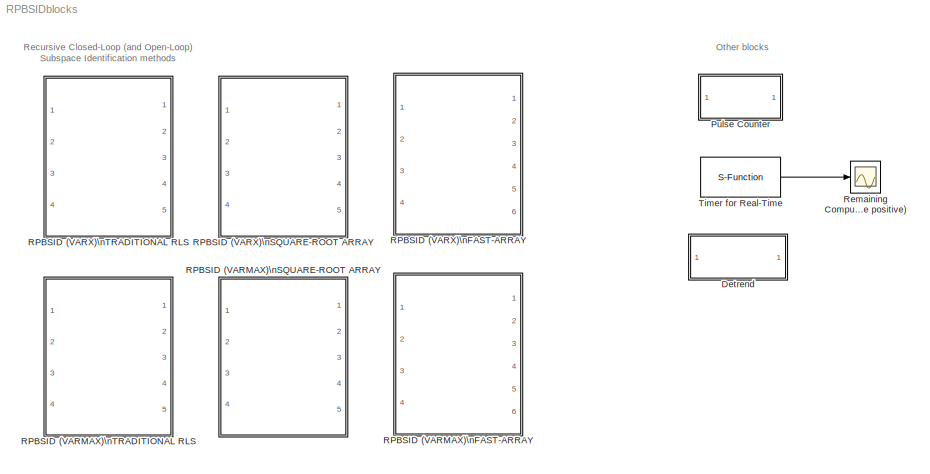
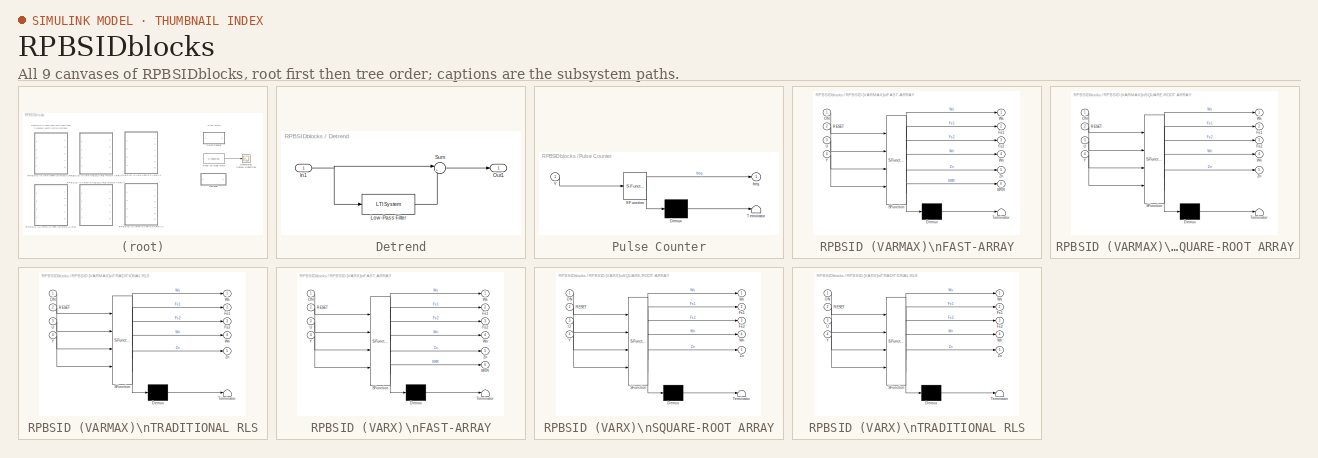
[diagram: thumbnail index - all 9 canvases of the model, root first then tree order]
MODEL RPBSIDblocks
KIND model
BLOCK [SubSystem] Detrend
  FunctionWithSeparateData = off
  MaskHideContents = off
  MinAlgLoopOccurrences = off
  Opaque = off
  Ports = [1, 1]
  PropExecContextOutsideSubsystem = off
  RTWSystemCode = Auto
  RequestExecContextInheritance = off
  SID = 32
BLOCK [Inport] Detrend/In1
  IconDisplay = Port number
  OutDataType = fixdt(1, 16)
  OutScaling = 2^0
  SID = 33
BLOCK [Reference] Detrend/Low-Pass Filter  REF=cstblocks/LTI System
  FunctionWithSeparateData = off
  IC = []
  Ports = [1, 1]
  RTWMemSecDataConstants = Inherit from model
  RTWMemSecDataInternal = Inherit from model
  RTWMemSecDataParameters = Inherit from model
  RTWMemSecFuncExecute = Inherit from model
  RTWMemSecFuncInitTerm = Inherit from model
  SID = 35
  ShowPortLabels = FromPortIcon
  SourceBlock = cstblocks/LTI System
  SourceType = LTI Block
  SystemSampleTime = -1
  sys = LP
BLOCK [Outport] Detrend/Out1
  IconDisplay = Port number
  OutDataType = fixdt(1, 16)
  OutScaling = 2^0
  SID = 34
BLOCK [Sum] Detrend/Sum
  IconShape = round
  InputSameDT = off
  Inputs = |+-
  OutDataType = fixdt(1, 16)
  OutDataTypeMode = Inherit via internal rule
  OutDataTypeStr = Inherit: Inherit via internal rule
  OutScaling = 2^0
  Ports = [2, 1]
  SID = 36
  SaturateOnIntegerOverflow = off
BLOCK [SubSystem] Pulse Counter
  FunctionWithSeparateData = off
  MaskDescription = Embedded MATLAB block
  MaskDisplay = disp('pulse');
  MaskHideContents = off
  MaskIconFrame = on
  MaskIconOpaque = off
  MaskIconRotate = none
  MaskIconUnits = autoscale
  MaskPortRotate = default
  MaskSelfModifiable = on
  MaskType = Stateflow
  MinAlgLoopOccurrences = off
  Opaque = off
  PermitHierarchicalResolution = ExplicitOnly
  Ports = [1, 1]
  PropExecContextOutsideSubsystem = off
  RTWSystemCode = Auto
  RequestExecContextInheritance = off
  SID = 3
BLOCK [Demux] Pulse Counter/ Demux 
  Outputs = 1
  Ports = [1, 1]
  SID = 7
BLOCK [S-Function] Pulse Counter/ SFunction 
  EnableBusSupport = off
  FunctionName = sf_sfun
  PortCounts = [1 2]
  Ports = [1, 2]
  SID = 6
  Tag = Stateflow S-Function RPBSIDblocks 15
BLOCK [Terminator] Pulse Counter/ Terminator 
  SID = 9
BLOCK [Inport] Pulse Counter/Y
  IconDisplay = Port number
  OutDataType = sfix(16)
  OutScaling = 2^0
  SID = 1
BLOCK [Outport] Pulse Counter/freq
  IconDisplay = Port number
  OutDataType = sfix(16)
  OutScaling = 2^0
  SID = 5
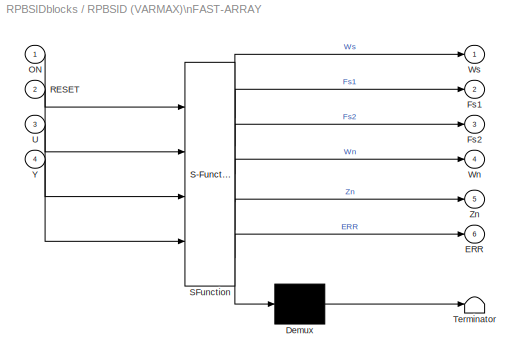
BLOCK [SubSystem] RPBSID (VARMAX)\nFAST-ARRAY
  FunctionWithSeparateData = off
  MaskDescription = Embedded MATLAB block
  MaskDisplay = disp('rpbsid');
  MaskHideContents = off
  MaskIconFrame = on
  MaskIconOpaque = off
  MaskIconRotate = none
  MaskIconUnits = autoscale
  MaskPortRotate = default
  MaskSelfModifiable = on
  MaskType = Stateflow
  MinAlgLoopOccurrences = off
  Opaque = off
  PermitHierarchicalResolution = ExplicitOnly
  Ports = [4, 6]
  PropExecContextOutsideSubsystem = off
  RTWSystemCode = Auto
  RequestExecContextInheritance = off
  SID = 26
BLOCK [Demux] RPBSID (VARMAX)\nFAST-ARRAY/ Demux 
  Outputs = 1
  Ports = [1, 1]
  SID = 19
BLOCK [S-Function] RPBSID (VARMAX)\nFAST-ARRAY/ SFunction 
  EnableBusSupport = on
  FunctionName = sf_sfun
  Parameters = Du,Dy,W
  PortCounts = [4 7]
  Ports = [4, 7]
  SID = 18
  Tag = Stateflow S-Function RPBSIDblocks 6
BLOCK [Terminator] RPBSID (VARMAX)\nFAST-ARRAY/ Terminator 
  SID = 21
BLOCK [Outport] RPBSID (VARMAX)\nFAST-ARRAY/ERR
  IconDisplay = Port number
  Port = 6
  SID = 25
BLOCK [Outport] RPBSID (VARMAX)\nFAST-ARRAY/Fs1
  IconDisplay = Port number
  Port = 2
  SID = 10
BLOCK [Outport] RPBSID (VARMAX)\nFAST-ARRAY/Fs2
  IconDisplay = Port number
  Port = 3
  SID = 11
BLOCK [Inport] RPBSID (VARMAX)\nFAST-ARRAY/ON
  IconDisplay = Port number
  SID = 24
BLOCK [Inport] RPBSID (VARMAX)\nFAST-ARRAY/RESET
  IconDisplay = Port number
  Port = 2
  SID = 26
BLOCK [Inport] RPBSID (VARMAX)\nFAST-ARRAY/U
  IconDisplay = Port number
  OutDataType = sfix(16)
  OutScaling = 2^0
  Port = 3
  SID = 1
BLOCK [Outport] RPBSID (VARMAX)\nFAST-ARRAY/Wn
  IconDisplay = Port number
  OutDataType = sfix(16)
  OutScaling = 2^0
  Port = 4
  SID = 12
BLOCK [Outport] RPBSID (VARMAX)\nFAST-ARRAY/Ws
  IconDisplay = Port number
  SID = 9
BLOCK [Inport] RPBSID (VARMAX)\nFAST-ARRAY/Y
  IconDisplay = Port number
  OutDataType = sfix(16)
  OutScaling = 2^0
  Port = 4
  SID = 2
BLOCK [Outport] RPBSID (VARMAX)\nFAST-ARRAY/Zn
  IconDisplay = Port number
  OutDataType = sfix(16)
  OutScaling = 2^0
  Port = 5
  SID = 13
BLOCK [SubSystem] RPBSID (VARMAX)\nSQUARE-ROOT ARRAY
  FunctionWithSeparateData = off
  MaskDescription = Embedded MATLAB block
  MaskDisplay = disp('rpbsid');
  MaskHideContents = off
  MaskIconFrame = on
  MaskIconOpaque = off
  MaskIconRotate = none
  MaskIconUnits = autoscale
  MaskPortRotate = default
  MaskSelfModifiable = on
  MaskType = Stateflow
  MinAlgLoopOccurrences = off
  Opaque = off
  PermitHierarchicalResolution = ExplicitOnly
  Ports = [4, 5]
  PropExecContextOutsideSubsystem = off
  RTWSystemCode = Auto
  RequestExecContextInheritance = off
  SID = 28
BLOCK [Demux] RPBSID (VARMAX)\nSQUARE-ROOT ARRAY/ Demux 
  Outputs = 1
  Ports = [1, 1]
  SID = 19
BLOCK [S-Function] RPBSID (VARMAX)\nSQUARE-ROOT ARRAY/ SFunction 
  EnableBusSupport = on
  FunctionName = sf_sfun
  Parameters = Du,Dy,W
  PortCounts = [4 6]
  Ports = [4, 6]
  SID = 18
  Tag = Stateflow S-Function RPBSIDblocks 1
BLOCK [Terminator] RPBSID (VARMAX)\nSQUARE-ROOT ARRAY/ Terminator 
  SID = 21
BLOCK [Outport] RPBSID (VARMAX)\nSQUARE-ROOT ARRAY/Fs1
  IconDisplay = Port number
  Port = 2
  SID = 10
BLOCK [Outport] RPBSID (VARMAX)\nSQUARE-ROOT ARRAY/Fs2
  IconDisplay = Port number
  Port = 3
  SID = 11
BLOCK [Inport] RPBSID (VARMAX)\nSQUARE-ROOT ARRAY/ON
  IconDisplay = Port number
  SID = 24
BLOCK [Inport] RPBSID (VARMAX)\nSQUARE-ROOT ARRAY/RESET
  IconDisplay = Port number
  Port = 2
  SID = 25
BLOCK [Inport] RPBSID (VARMAX)\nSQUARE-ROOT ARRAY/U
  IconDisplay = Port number
  OutDataType = sfix(16)
  OutScaling = 2^0
  Port = 3
  SID = 1
BLOCK [Outport] RPBSID (VARMAX)\nSQUARE-ROOT ARRAY/Wn
  IconDisplay = Port number
  OutDataType = sfix(16)
  OutScaling = 2^0
  Port = 4
  SID = 12
BLOCK [Outport] RPBSID (VARMAX)\nSQUARE-ROOT ARRAY/Ws
  IconDisplay = Port number
  SID = 9
BLOCK [Inport] RPBSID (VARMAX)\nSQUARE-ROOT ARRAY/Y
  IconDisplay = Port number
  OutDataType = sfix(16)
  OutScaling = 2^0
  Port = 4
  SID = 2
BLOCK [Outport] RPBSID (VARMAX)\nSQUARE-ROOT ARRAY/Zn
  IconDisplay = Port number
  OutDataType = sfix(16)
  OutScaling = 2^0
  Port = 5
  SID = 13
BLOCK [SubSystem] RPBSID (VARMAX)\nTRADITIONAL RLS
  FunctionWithSeparateData = off
  MaskDescription = Embedded MATLAB block
  MaskDisplay = disp('rpbsid');
  MaskHideContents = off
  MaskIconFrame = on
  MaskIconOpaque = off
  MaskIconRotate = none
  MaskIconUnits = autoscale
  MaskPortRotate = default
  MaskSelfModifiable = on
  MaskType = Stateflow
  MinAlgLoopOccurrences = off
  Opaque = off
  PermitHierarchicalResolution = ExplicitOnly
  Ports = [4, 5]
  PropExecContextOutsideSubsystem = off
  RTWSystemCode = Auto
  RequestExecContextInheritance = off
  SID = 27
BLOCK [Demux] RPBSID (VARMAX)\nTRADITIONAL RLS/ Demux 
  Outputs = 1
  Ports = [1, 1]
  SID = 19
BLOCK [S-Function] RPBSID (VARMAX)\nTRADITIONAL RLS/ SFunction 
  EnableBusSupport = on
  FunctionName = sf_sfun
  Parameters = Du,Dy,W
  PortCounts = [4 6]
  Ports = [4, 6]
  SID = 18
  Tag = Stateflow S-Function RPBSIDblocks 4
BLOCK [Terminator] RPBSID (VARMAX)\nTRADITIONAL RLS/ Terminator 
  SID = 21
BLOCK [Outport] RPBSID (VARMAX)\nTRADITIONAL RLS/Fs1
  IconDisplay = Port number
  Port = 2
  SID = 10
BLOCK [Outport] RPBSID (VARMAX)\nTRADITIONAL RLS/Fs2
  IconDisplay = Port number
  Port = 3
  SID = 11
BLOCK [Inport] RPBSID (VARMAX)\nTRADITIONAL RLS/ON
  IconDisplay = Port number
  SID = 24
BLOCK [Inport] RPBSID (VARMAX)\nTRADITIONAL RLS/RESET
  IconDisplay = Port number
  Port = 2
  SID = 25
BLOCK [Inport] RPBSID (VARMAX)\nTRADITIONAL RLS/U
  IconDisplay = Port number
  OutDataType = sfix(16)
  OutScaling = 2^0
  Port = 3
  SID = 1
BLOCK [Outport] RPBSID (VARMAX)\nTRADITIONAL RLS/Wn
  IconDisplay = Port number
  OutDataType = sfix(16)
  OutScaling = 2^0
  Port = 4
  SID = 12
BLOCK [Outport] RPBSID (VARMAX)\nTRADITIONAL RLS/Ws
  IconDisplay = Port number
  SID = 9
BLOCK [Inport] RPBSID (VARMAX)\nTRADITIONAL RLS/Y
  IconDisplay = Port number
  OutDataType = sfix(16)
  OutScaling = 2^0
  Port = 4
  SID = 2
BLOCK [Outport] RPBSID (VARMAX)\nTRADITIONAL RLS/Zn
  IconDisplay = Port number
  OutDataType = sfix(16)
  OutScaling = 2^0
  Port = 5
  SID = 13
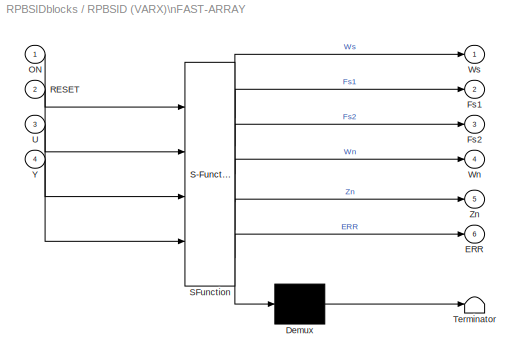
BLOCK [SubSystem] RPBSID (VARX)\nFAST-ARRAY
  FunctionWithSeparateData = off
  MaskDescription = Embedded MATLAB block
  MaskDisplay = disp('rpbsid');
  MaskHideContents = off
  MaskIconFrame = on
  MaskIconOpaque = off
  MaskIconRotate = none
  MaskIconUnits = autoscale
  MaskPortRotate = default
  MaskSelfModifiable = on
  MaskType = Stateflow
  MinAlgLoopOccurrences = off
  Opaque = off
  PermitHierarchicalResolution = ExplicitOnly
  Ports = [4, 6]
  PropExecContextOutsideSubsystem = off
  RTWSystemCode = Auto
  RequestExecContextInheritance = off
  SID = 29
BLOCK [Demux] RPBSID (VARX)\nFAST-ARRAY/ Demux 
  Outputs = 1
  Ports = [1, 1]
  SID = 19
BLOCK [S-Function] RPBSID (VARX)\nFAST-ARRAY/ SFunction 
  EnableBusSupport = on
  FunctionName = sf_sfun
  Parameters = Du,Dy,W
  PortCounts = [4 7]
  Ports = [4, 7]
  SID = 18
  Tag = Stateflow S-Function RPBSIDblocks 5
BLOCK [Terminator] RPBSID (VARX)\nFAST-ARRAY/ Terminator 
  SID = 21
BLOCK [Outport] RPBSID (VARX)\nFAST-ARRAY/ERR
  IconDisplay = Port number
  Port = 6
  SID = 25
BLOCK [Outport] RPBSID (VARX)\nFAST-ARRAY/Fs1
  IconDisplay = Port number
  Port = 2
  SID = 10
BLOCK [Outport] RPBSID (VARX)\nFAST-ARRAY/Fs2
  IconDisplay = Port number
  Port = 3
  SID = 11
BLOCK [Inport] RPBSID (VARX)\nFAST-ARRAY/ON
  IconDisplay = Port number
  SID = 24
BLOCK [Inport] RPBSID (VARX)\nFAST-ARRAY/RESET
  IconDisplay = Port number
  Port = 2
  SID = 27
BLOCK [Inport] RPBSID (VARX)\nFAST-ARRAY/U
  IconDisplay = Port number
  OutDataType = sfix(16)
  OutScaling = 2^0
  Port = 3
  SID = 1
BLOCK [Outport] RPBSID (VARX)\nFAST-ARRAY/Wn
  IconDisplay = Port number
  OutDataType = sfix(16)
  OutScaling = 2^0
  Port = 4
  SID = 12
BLOCK [Outport] RPBSID (VARX)\nFAST-ARRAY/Ws
  IconDisplay = Port number
  SID = 9
BLOCK [Inport] RPBSID (VARX)\nFAST-ARRAY/Y
  IconDisplay = Port number
  OutDataType = sfix(16)
  OutScaling = 2^0
  Port = 4
  SID = 2
BLOCK [Outport] RPBSID (VARX)\nFAST-ARRAY/Zn
  IconDisplay = Port number
  OutDataType = sfix(16)
  OutScaling = 2^0
  Port = 5
  SID = 13
BLOCK [SubSystem] RPBSID (VARX)\nSQUARE-ROOT ARRAY
  FunctionWithSeparateData = off
  MaskDescription = Embedded MATLAB block
  MaskDisplay = disp('rpbsid');
  MaskHideContents = off
  MaskIconFrame = on
  MaskIconOpaque = off
  MaskIconRotate = none
  MaskIconUnits = autoscale
  MaskPortRotate = default
  MaskSelfModifiable = on
  MaskType = Stateflow
  MinAlgLoopOccurrences = off
  Opaque = off
  PermitHierarchicalResolution = ExplicitOnly
  Ports = [4, 5]
  PropExecContextOutsideSubsystem = off
  RTWSystemCode = Auto
  RequestExecContextInheritance = off
  SID = 31
BLOCK [Demux] RPBSID (VARX)\nSQUARE-ROOT ARRAY/ Demux 
  Outputs = 1
  Ports = [1, 1]
  SID = 19
BLOCK [S-Function] RPBSID (VARX)\nSQUARE-ROOT ARRAY/ SFunction 
  EnableBusSupport = on
  FunctionName = sf_sfun
  Parameters = Du,Dy,W
  PortCounts = [4 6]
  Ports = [4, 6]
  SID = 18
  Tag = Stateflow S-Function RPBSIDblocks 2
BLOCK [Terminator] RPBSID (VARX)\nSQUARE-ROOT ARRAY/ Terminator 
  SID = 21
BLOCK [Outport] RPBSID (VARX)\nSQUARE-ROOT ARRAY/Fs1
  IconDisplay = Port number
  Port = 2
  SID = 10
BLOCK [Outport] RPBSID (VARX)\nSQUARE-ROOT ARRAY/Fs2
  IconDisplay = Port number
  Port = 3
  SID = 11
BLOCK [Inport] RPBSID (VARX)\nSQUARE-ROOT ARRAY/ON
  IconDisplay = Port number
  SID = 24
BLOCK [Inport] RPBSID (VARX)\nSQUARE-ROOT ARRAY/RESET
  IconDisplay = Port number
  Port = 2
  SID = 26
BLOCK [Inport] RPBSID (VARX)\nSQUARE-ROOT ARRAY/U
  IconDisplay = Port number
  OutDataType = sfix(16)
  OutScaling = 2^0
  Port = 3
  SID = 1
BLOCK [Outport] RPBSID (VARX)\nSQUARE-ROOT ARRAY/Wn
  IconDisplay = Port number
  OutDataType = sfix(16)
  OutScaling = 2^0
  Port = 4
  SID = 12
BLOCK [Outport] RPBSID (VARX)\nSQUARE-ROOT ARRAY/Ws
  IconDisplay = Port number
  SID = 9
BLOCK [Inport] RPBSID (VARX)\nSQUARE-ROOT ARRAY/Y
  IconDisplay = Port number
  OutDataType = sfix(16)
  OutScaling = 2^0
  Port = 4
  SID = 2
BLOCK [Outport] RPBSID (VARX)\nSQUARE-ROOT ARRAY/Zn
  IconDisplay = Port number
  OutDataType = sfix(16)
  OutScaling = 2^0
  Port = 5
  SID = 13
BLOCK [SubSystem] RPBSID (VARX)\nTRADITIONAL RLS
  FunctionWithSeparateData = off
  MaskDescription = Embedded MATLAB block
  MaskDisplay = disp('rpbsid');
  MaskHideContents = off
  MaskIconFrame = on
  MaskIconOpaque = off
  MaskIconRotate = none
  MaskIconUnits = autoscale
  MaskPortRotate = default
  MaskSelfModifiable = on
  MaskType = Stateflow
  MinAlgLoopOccurrences = off
  Opaque = off
  PermitHierarchicalResolution = ExplicitOnly
  Ports = [4, 5]
  PropExecContextOutsideSubsystem = off
  RTWSystemCode = Auto
  RequestExecContextInheritance = off
  SID = 30
BLOCK [Demux] RPBSID (VARX)\nTRADITIONAL RLS/ Demux 
  Outputs = 1
  Ports = [1, 1]
  SID = 19
BLOCK [S-Function] RPBSID (VARX)\nTRADITIONAL RLS/ SFunction 
  EnableBusSupport = on
  FunctionName = sf_sfun
  Parameters = Du,Dy,W
  PortCounts = [4 6]
  Ports = [4, 6]
  SID = 18
  Tag = Stateflow S-Function RPBSIDblocks 3
BLOCK [Terminator] RPBSID (VARX)\nTRADITIONAL RLS/ Terminator 
  SID = 21
BLOCK [Outport] RPBSID (VARX)\nTRADITIONAL RLS/Fs1
  IconDisplay = Port number
  Port = 2
  SID = 10
BLOCK [Outport] RPBSID (VARX)\nTRADITIONAL RLS/Fs2
  IconDisplay = Port number
  Port = 3
  SID = 11
BLOCK [Inport] RPBSID (VARX)\nTRADITIONAL RLS/ON
  IconDisplay = Port number
  SID = 24
BLOCK [Inport] RPBSID (VARX)\nTRADITIONAL RLS/RESET
  IconDisplay = Port number
  Port = 2
  SID = 26
BLOCK [Inport] RPBSID (VARX)\nTRADITIONAL RLS/U
  IconDisplay = Port number
  OutDataType = sfix(16)
  OutScaling = 2^0
  Port = 3
  SID = 1
BLOCK [Outport] RPBSID (VARX)\nTRADITIONAL RLS/Wn
  IconDisplay = Port number
  OutDataType = sfix(16)
  OutScaling = 2^0
  Port = 4
  SID = 12
BLOCK [Outport] RPBSID (VARX)\nTRADITIONAL RLS/Ws
  IconDisplay = Port number
  SID = 9
BLOCK [Inport] RPBSID (VARX)\nTRADITIONAL RLS/Y
  IconDisplay = Port number
  OutDataType = sfix(16)
  OutScaling = 2^0
  Port = 4
  SID = 2
BLOCK [Outport] RPBSID (VARX)\nTRADITIONAL RLS/Zn
  IconDisplay = Port number
  OutDataType = sfix(16)
  OutScaling = 2^0
  Port = 5
  SID = 13
BLOCK [Scope] Remaining Computation Time\n(must be positive)
  DataFormat = StructureWithTime
  Floating = off
  NumInputPorts = 1
  Ports = [1]
  SID = 8
  SampleTime = 0
  TimeRange = 10
  YMax = 0.01
  YMin = -0.01
  ZoomMode = xonly
BLOCK [S-Function] Timer for Real-Time
  EnableBusSupport = off
  FunctionName = sfun_rttime
  Parameters = 1
  Ports = [0, 1]
  SID = 7
ANNOTATION (root): Other blocks
ANNOTATION (root): Recursive Closed-Loop (and Open-Loop)\nSubspace Identification methods
NET Detrend/In1:1 -> Detrend/Low-Pass Filter:1, Detrend/Sum:1
LINE Detrend/Low-Pass Filter:1 -> Detrend/Sum:2
LINE Detrend/Sum:1 -> Detrend/Out1:1
LINE Pulse Counter/ Demux :1 -> Pulse Counter/ Terminator :1
LINE Pulse Counter/ SFunction :1 -> Pulse Counter/ Demux :1
LINE Pulse Counter/ SFunction :2 -> Pulse Counter/freq:1
LINE Pulse Counter/Y:1 -> Pulse Counter/ SFunction :1
LINE RPBSID (VARMAX)\nFAST-ARRAY/ Demux :1 -> RPBSID (VARMAX)\nFAST-ARRAY/ Terminator :1
LINE RPBSID (VARMAX)\nFAST-ARRAY/ SFunction :1 -> RPBSID (VARMAX)\nFAST-ARRAY/ Demux :1
LINE RPBSID (VARMAX)\nFAST-ARRAY/ SFunction :2 -> RPBSID (VARMAX)\nFAST-ARRAY/Ws:1
LINE RPBSID (VARMAX)\nFAST-ARRAY/ SFunction :3 -> RPBSID (VARMAX)\nFAST-ARRAY/Fs1:1
LINE RPBSID (VARMAX)\nFAST-ARRAY/ SFunction :4 -> RPBSID (VARMAX)\nFAST-ARRAY/Fs2:1
LINE RPBSID (VARMAX)\nFAST-ARRAY/ SFunction :5 -> RPBSID (VARMAX)\nFAST-ARRAY/Wn:1
LINE RPBSID (VARMAX)\nFAST-ARRAY/ SFunction :6 -> RPBSID (VARMAX)\nFAST-ARRAY/Zn:1
LINE RPBSID (VARMAX)\nFAST-ARRAY/ SFunction :7 -> RPBSID (VARMAX)\nFAST-ARRAY/ERR:1
LINE RPBSID (VARMAX)\nFAST-ARRAY/ON:1 -> RPBSID (VARMAX)\nFAST-ARRAY/ SFunction :1
LINE RPBSID (VARMAX)\nFAST-ARRAY/RESET:1 -> RPBSID (VARMAX)\nFAST-ARRAY/ SFunction :2
LINE RPBSID (VARMAX)\nFAST-ARRAY/U:1 -> RPBSID (VARMAX)\nFAST-ARRAY/ SFunction :3
LINE RPBSID (VARMAX)\nFAST-ARRAY/Y:1 -> RPBSID (VARMAX)\nFAST-ARRAY/ SFunction :4
LINE RPBSID (VARMAX)\nSQUARE-ROOT ARRAY/ Demux :1 -> RPBSID (VARMAX)\nSQUARE-ROOT ARRAY/ Terminator :1
LINE RPBSID (VARMAX)\nSQUARE-ROOT ARRAY/ SFunction :1 -> RPBSID (VARMAX)\nSQUARE-ROOT ARRAY/ Demux :1
LINE RPBSID (VARMAX)\nSQUARE-ROOT ARRAY/ SFunction :2 -> RPBSID (VARMAX)\nSQUARE-ROOT ARRAY/Ws:1
LINE RPBSID (VARMAX)\nSQUARE-ROOT ARRAY/ SFunction :3 -> RPBSID (VARMAX)\nSQUARE-ROOT ARRAY/Fs1:1
LINE RPBSID (VARMAX)\nSQUARE-ROOT ARRAY/ SFunction :4 -> RPBSID (VARMAX)\nSQUARE-ROOT ARRAY/Fs2:1
LINE RPBSID (VARMAX)\nSQUARE-ROOT ARRAY/ SFunction :5 -> RPBSID (VARMAX)\nSQUARE-ROOT ARRAY/Wn:1
LINE RPBSID (VARMAX)\nSQUARE-ROOT ARRAY/ SFunction :6 -> RPBSID (VARMAX)\nSQUARE-ROOT ARRAY/Zn:1
LINE RPBSID (VARMAX)\nSQUARE-ROOT ARRAY/ON:1 -> RPBSID (VARMAX)\nSQUARE-ROOT ARRAY/ SFunction :1
LINE RPBSID (VARMAX)\nSQUARE-ROOT ARRAY/RESET:1 -> RPBSID (VARMAX)\nSQUARE-ROOT ARRAY/ SFunction :2
LINE RPBSID (VARMAX)\nSQUARE-ROOT ARRAY/U:1 -> RPBSID (VARMAX)\nSQUARE-ROOT ARRAY/ SFunction :3
LINE RPBSID (VARMAX)\nSQUARE-ROOT ARRAY/Y:1 -> RPBSID (VARMAX)\nSQUARE-ROOT ARRAY/ SFunction :4
LINE RPBSID (VARMAX)\nTRADITIONAL RLS/ Demux :1 -> RPBSID (VARMAX)\nTRADITIONAL RLS/ Terminator :1
LINE RPBSID (VARMAX)\nTRADITIONAL RLS/ SFunction :1 -> RPBSID (VARMAX)\nTRADITIONAL RLS/ Demux :1
LINE RPBSID (VARMAX)\nTRADITIONAL RLS/ SFunction :2 -> RPBSID (VARMAX)\nTRADITIONAL RLS/Ws:1
LINE RPBSID (VARMAX)\nTRADITIONAL RLS/ SFunction :3 -> RPBSID (VARMAX)\nTRADITIONAL RLS/Fs1:1
LINE RPBSID (VARMAX)\nTRADITIONAL RLS/ SFunction :4 -> RPBSID (VARMAX)\nTRADITIONAL RLS/Fs2:1
LINE RPBSID (VARMAX)\nTRADITIONAL RLS/ SFunction :5 -> RPBSID (VARMAX)\nTRADITIONAL RLS/Wn:1
LINE RPBSID (VARMAX)\nTRADITIONAL RLS/ SFunction :6 -> RPBSID (VARMAX)\nTRADITIONAL RLS/Zn:1
LINE RPBSID (VARMAX)\nTRADITIONAL RLS/ON:1 -> RPBSID (VARMAX)\nTRADITIONAL RLS/ SFunction :1
LINE RPBSID (VARMAX)\nTRADITIONAL RLS/RESET:1 -> RPBSID (VARMAX)\nTRADITIONAL RLS/ SFunction :2
LINE RPBSID (VARMAX)\nTRADITIONAL RLS/U:1 -> RPBSID (VARMAX)\nTRADITIONAL RLS/ SFunction :3
LINE RPBSID (VARMAX)\nTRADITIONAL RLS/Y:1 -> RPBSID (VARMAX)\nTRADITIONAL RLS/ SFunction :4
LINE RPBSID (VARX)\nFAST-ARRAY/ Demux :1 -> RPBSID (VARX)\nFAST-ARRAY/ Terminator :1
LINE RPBSID (VARX)\nFAST-ARRAY/ SFunction :1 -> RPBSID (VARX)\nFAST-ARRAY/ Demux :1
LINE RPBSID (VARX)\nFAST-ARRAY/ SFunction :2 -> RPBSID (VARX)\nFAST-ARRAY/Ws:1
LINE RPBSID (VARX)\nFAST-ARRAY/ SFunction :3 -> RPBSID (VARX)\nFAST-ARRAY/Fs1:1
LINE RPBSID (VARX)\nFAST-ARRAY/ SFunction :4 -> RPBSID (VARX)\nFAST-ARRAY/Fs2:1
LINE RPBSID (VARX)\nFAST-ARRAY/ SFunction :5 -> RPBSID (VARX)\nFAST-ARRAY/Wn:1
LINE RPBSID (VARX)\nFAST-ARRAY/ SFunction :6 -> RPBSID (VARX)\nFAST-ARRAY/Zn:1
LINE RPBSID (VARX)\nFAST-ARRAY/ SFunction :7 -> RPBSID (VARX)\nFAST-ARRAY/ERR:1
LINE RPBSID (VARX)\nFAST-ARRAY/ON:1 -> RPBSID (VARX)\nFAST-ARRAY/ SFunction :1
LINE RPBSID (VARX)\nFAST-ARRAY/RESET:1 -> RPBSID (VARX)\nFAST-ARRAY/ SFunction :2
LINE RPBSID (VARX)\nFAST-ARRAY/U:1 -> RPBSID (VARX)\nFAST-ARRAY/ SFunction :3
LINE RPBSID (VARX)\nFAST-ARRAY/Y:1 -> RPBSID (VARX)\nFAST-ARRAY/ SFunction :4
LINE RPBSID (VARX)\nSQUARE-ROOT ARRAY/ Demux :1 -> RPBSID (VARX)\nSQUARE-ROOT ARRAY/ Terminator :1
LINE RPBSID (VARX)\nSQUARE-ROOT ARRAY/ SFunction :1 -> RPBSID (VARX)\nSQUARE-ROOT ARRAY/ Demux :1
LINE RPBSID (VARX)\nSQUARE-ROOT ARRAY/ SFunction :2 -> RPBSID (VARX)\nSQUARE-ROOT ARRAY/Ws:1
LINE RPBSID (VARX)\nSQUARE-ROOT ARRAY/ SFunction :3 -> RPBSID (VARX)\nSQUARE-ROOT ARRAY/Fs1:1
LINE RPBSID (VARX)\nSQUARE-ROOT ARRAY/ SFunction :4 -> RPBSID (VARX)\nSQUARE-ROOT ARRAY/Fs2:1
LINE RPBSID (VARX)\nSQUARE-ROOT ARRAY/ SFunction :5 -> RPBSID (VARX)\nSQUARE-ROOT ARRAY/Wn:1
LINE RPBSID (VARX)\nSQUARE-ROOT ARRAY/ SFunction :6 -> RPBSID (VARX)\nSQUARE-ROOT ARRAY/Zn:1
LINE RPBSID (VARX)\nSQUARE-ROOT ARRAY/ON:1 -> RPBSID (VARX)\nSQUARE-ROOT ARRAY/ SFunction :1
LINE RPBSID (VARX)\nSQUARE-ROOT ARRAY/RESET:1 -> RPBSID (VARX)\nSQUARE-ROOT ARRAY/ SFunction :2
LINE RPBSID (VARX)\nSQUARE-ROOT ARRAY/U:1 -> RPBSID (VARX)\nSQUARE-ROOT ARRAY/ SFunction :3
LINE RPBSID (VARX)\nSQUARE-ROOT ARRAY/Y:1 -> RPBSID (VARX)\nSQUARE-ROOT ARRAY/ SFunction :4
LINE RPBSID (VARX)\nTRADITIONAL RLS/ Demux :1 -> RPBSID (VARX)\nTRADITIONAL RLS/ Terminator :1
LINE RPBSID (VARX)\nTRADITIONAL RLS/ SFunction :1 -> RPBSID (VARX)\nTRADITIONAL RLS/ Demux :1
LINE RPBSID (VARX)\nTRADITIONAL RLS/ SFunction :2 -> RPBSID (VARX)\nTRADITIONAL RLS/Ws:1
LINE RPBSID (VARX)\nTRADITIONAL RLS/ SFunction :3 -> RPBSID (VARX)\nTRADITIONAL RLS/Fs1:1
LINE RPBSID (VARX)\nTRADITIONAL RLS/ SFunction :4 -> RPBSID (VARX)\nTRADITIONAL RLS/Fs2:1
LINE RPBSID (VARX)\nTRADITIONAL RLS/ SFunction :5 -> RPBSID (VARX)\nTRADITIONAL RLS/Wn:1
LINE RPBSID (VARX)\nTRADITIONAL RLS/ SFunction :6 -> RPBSID (VARX)\nTRADITIONAL RLS/Zn:1
LINE RPBSID (VARX)\nTRADITIONAL RLS/ON:1 -> RPBSID (VARX)\nTRADITIONAL RLS/ SFunction :1
LINE RPBSID (VARX)\nTRADITIONAL RLS/RESET:1 -> RPBSID (VARX)\nTRADITIONAL RLS/ SFunction :2
LINE RPBSID (VARX)\nTRADITIONAL RLS/U:1 -> RPBSID (VARX)\nTRADITIONAL RLS/ SFunction :3
LINE RPBSID (VARX)\nTRADITIONAL RLS/Y:1 -> RPBSID (VARX)\nTRADITIONAL RLS/ SFunction :4
LINE Timer for Real-Time:1 -> Remaining Computation Time\n(must be positive):1
note: NET lines group one-source signal fan-out (src -> all destinations, sorted); 1:1 wires keep LINE
CHART RPBSID (VARMAX)\nSQUARE-ROOT ARRAY states=1 transitions=1
  STATE_LABEL 'eML_blk_kernel()'
CHART RPBSID (VARX)\nSQUARE-ROOT ARRAY states=1 transitions=1
  STATE_LABEL 'eML_blk_kernel()'
CHART RPBSID (VARX)\nTRADITIONAL RLS states=1 transitions=1
  STATE_LABEL 'eML_blk_kernel()'
CHART RPBSID (VARMAX)\nTRADITIONAL RLS states=1 transitions=1
  STATE_LABEL 'eML_blk_kernel()'
CHART RPBSID (VARX)\nFAST-ARRAY states=1 transitions=1
  STATE_LABEL 'eML_blk_kernel()'
CHART RPBSID (VARMAX)\nFAST-ARRAY states=1 transitions=1
  STATE_LABEL 'eML_blk_kernel()'
CHART Pulse Counter states=1 transitions=1
  STATE_LABEL 'eML_blk_kernel()'
